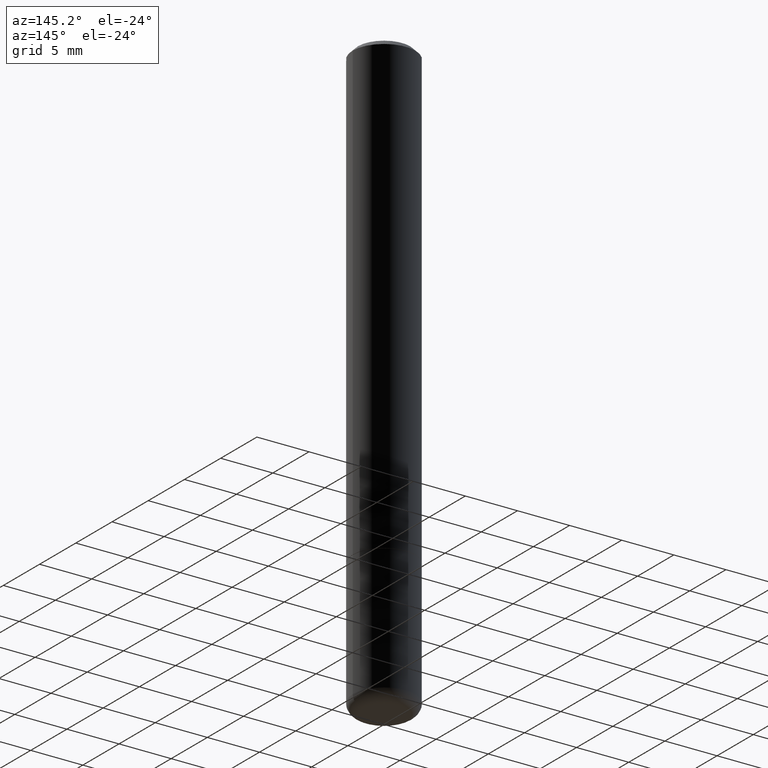
[diagram: clean part render]
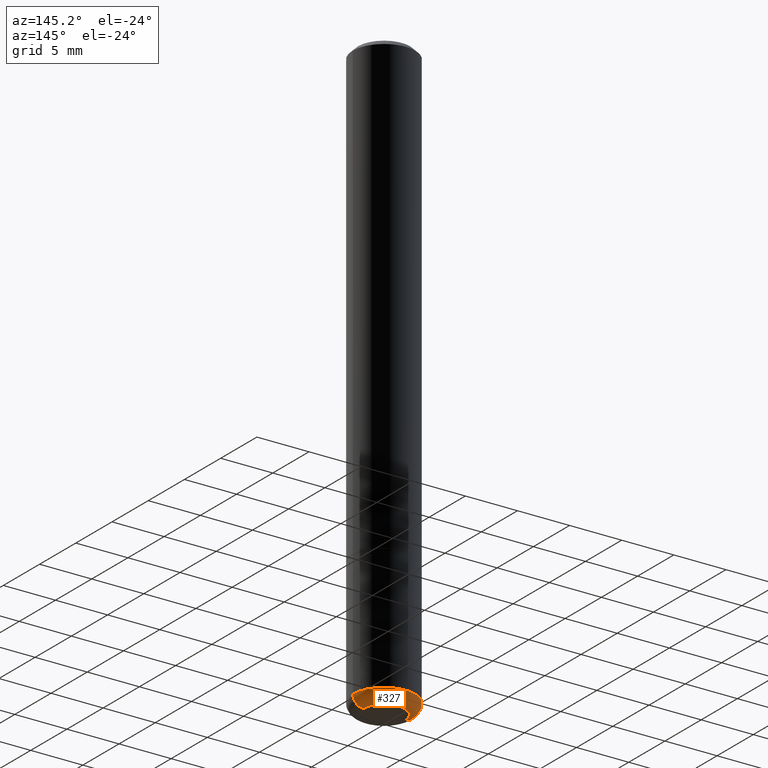
[diagram: same view with one face highlighted and labeled with its STEP entity id]
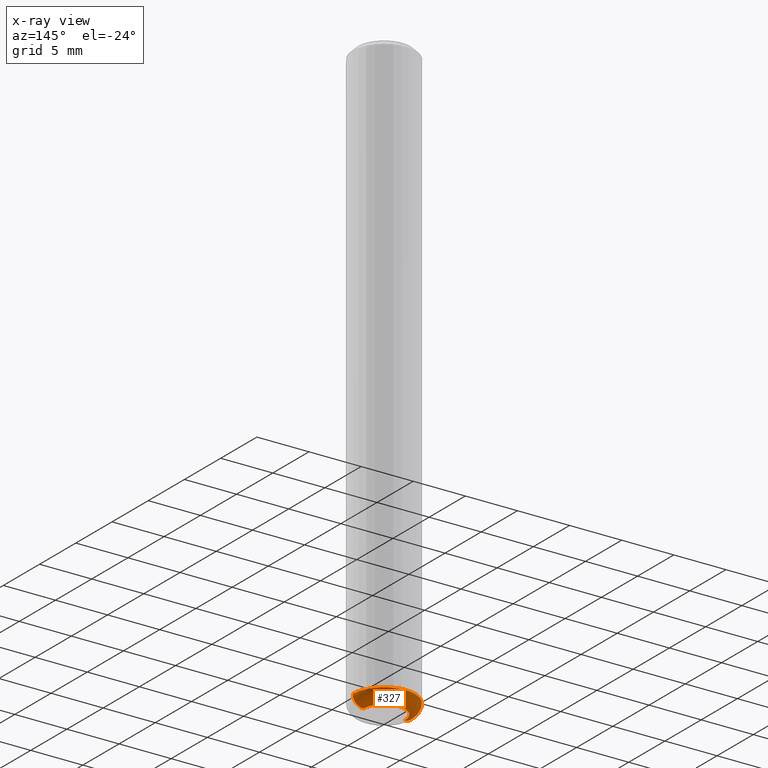
[diagram: x-ray of the same camera — body ghosted, the highlighted face saturated]
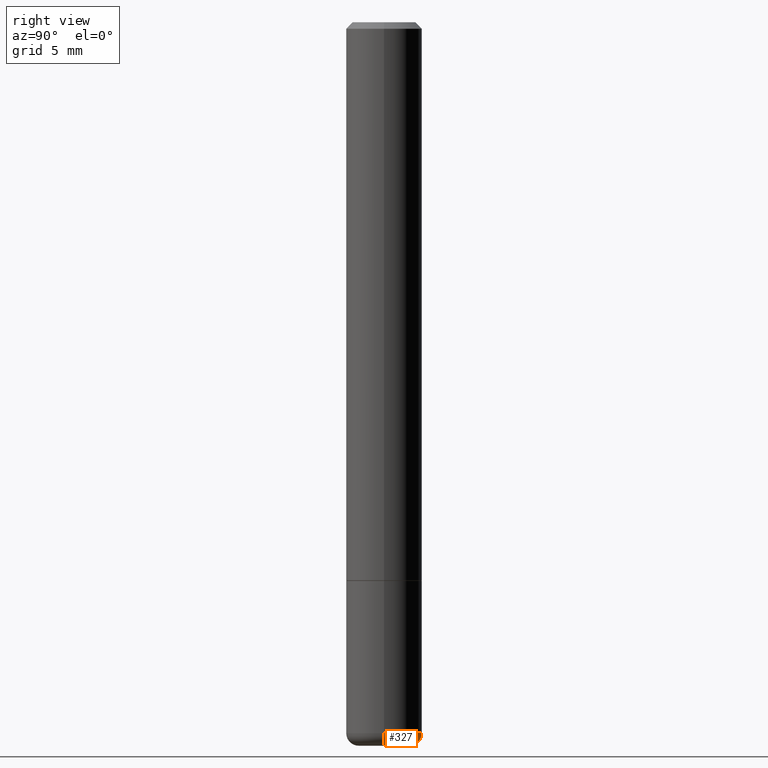
[diagram: same view with one face highlighted and labeled with its STEP entity id]
A machine part, auxiliary view. The second image highlights one B-rep face of the part: STEP entity #327.
The next image is the same camera in x-ray: the body ghosted, the highlighted face saturated — about 0% of this face is hidden behind the body in this view.
A second angle (right view) of the same face is appended — the face is thin or edge-on in the first view.
In plain terms, the highlighted toroidal blend (fillet) surface has major radius 1.999 mm and minor (blend) radius 1.0008 mm.
Its self-contained STEP definition (entity closure, byte-faithful):
#4 = DIRECTION ( 'NONE',  ( -1.000000000000000000, 7.105427357600989237E-15, 0.000000000000000000 ) ) ;
#33 = CARTESIAN_POINT ( 'NONE',  ( 5.487876547960064752E-29, -7.835233272497900762E-15, -2.244099999999999540 ) ) ;
#41 = VERTEX_POINT ( 'NONE', #347 ) ;
#57 = ORIENTED_EDGE ( 'NONE', *, *, #384, .F. ) ;
#60 = AXIS2_PLACEMENT_3D ( 'NONE', #134, #164, #106 ) ;
#63 = EDGE_CURVE ( 'NONE', #242, #407, #101, .T. ) ;
#69 = FACE_OUTER_BOUND ( 'NONE', #265, .T. ) ;
#70 = ORIENTED_EDGE ( 'NONE', *, *, #63, .F. ) ;
#101 = CIRCLE ( 'NONE', #172, 0.1180999999999999966 ) ;
#106 = DIRECTION ( 'NONE',  ( 1.000000000000000000, -6.982962677686266711E-15, 0.000000000000000000 ) ) ;
#107 = ORIENTED_EDGE ( 'NONE', *, *, #218, .T. ) ;
#111 = DIRECTION ( 'NONE',  ( 1.000000000000000000, -6.982962677686268288E-15, 4.883557194083112901E-29 ) ) ;
#121 = ORIENTED_EDGE ( 'NONE', *, *, #390, .T. ) ;
#123 = AXIS2_PLACEMENT_3D ( 'NONE', #235, #286, #4 ) ;
#134 = CARTESIAN_POINT ( 'NONE',  ( 0.07870000000000000606, -8.247228070481392959E-15, -2.204700000000000326 ) ) ;
#135 = CARTESIAN_POINT ( 'NONE',  ( -0.1180999999999998995, -6.858517936814806506E-15, -2.204700000000000326 ) ) ;
#158 = CARTESIAN_POINT ( 'NONE',  ( 5.391525076996371277E-29, -7.697668907747483125E-15, -2.204700000000000326 ) ) ;
#162 = DIRECTION ( 'NONE',  ( 1.000000000000000000, -6.982962677686269077E-15, 0.000000000000000000 ) ) ;
#164 = DIRECTION ( 'NONE',  ( -6.982962677686266711E-15, -1.000000000000000000, 3.491481338843145583E-15 ) ) ;
#166 = CIRCLE ( 'NONE', #60, 0.03939999999999978936 ) ;
#172 = AXIS2_PLACEMENT_3D ( 'NONE', #158, #281, #282 ) ;
#200 = AXIS2_PLACEMENT_3D ( 'NONE', #33, #319, #162 ) ;
#202 = DIRECTION ( 'NONE',  ( -2.445468806185136597E-29, 3.491481338843145583E-15, 1.000000000000000000 ) ) ;
#218 = EDGE_CURVE ( 'NONE', #394, #41, #382, .T. ) ;
#235 = CARTESIAN_POINT ( 'NONE',  ( -0.07870000000000000606, -7.138471774704284335E-15, -2.204700000000000326 ) ) ;
#236 = TOROIDAL_SURFACE ( 'NONE', #320, 0.07870000000000000606, 0.03939999999999978936 ) ;
#242 = VERTEX_POINT ( 'NONE', #284 ) ;
#265 = EDGE_LOOP ( 'NONE', ( #107, #121, #70, #57 ) ) ;
#281 = DIRECTION ( 'NONE',  ( -2.445468806185136597E-29, 3.491481338843145583E-15, 1.000000000000000000 ) ) ;
#282 = DIRECTION ( 'NONE',  ( 1.000000000000000000, -6.982962677686265133E-15, 0.000000000000000000 ) ) ;
#284 = CARTESIAN_POINT ( 'NONE',  ( 0.1180999999999998995, -8.522356799982231388E-15, -2.204700000000000326 ) ) ;
#286 = DIRECTION ( 'NONE',  ( 7.105427357601001859E-15, 1.000000000000000000, -3.491481338843145583E-15 ) ) ;
#291 = CARTESIAN_POINT ( 'NONE',  ( 5.391525076996371277E-29, -7.697668907747483125E-15, -2.204700000000000326 ) ) ;
#319 = DIRECTION ( 'NONE',  ( -2.445468806185136597E-29, 3.491481338843145583E-15, 1.000000000000000000 ) ) ;
#320 = AXIS2_PLACEMENT_3D ( 'NONE', #291, #202, #111 ) ;
#327 = ADVANCED_FACE ( 'NONE', ( #69 ), #236, .T. ) ;
#347 = CARTESIAN_POINT ( 'NONE',  ( -0.07870000000000000606, -7.067277038134755422E-15, -2.244099999999999540 ) ) ;
#361 = CARTESIAN_POINT ( 'NONE',  ( 0.07870000000000000606, -8.384792435231810596E-15, -2.244099999999999540 ) ) ;
#377 = CIRCLE ( 'NONE', #123, 0.03939999999999978936 ) ;
#382 = CIRCLE ( 'NONE', #200, 0.07870000000000000606 ) ;
#384 = EDGE_CURVE ( 'NONE', #394, #242, #166, .T. ) ;
#390 = EDGE_CURVE ( 'NONE', #41, #407, #377, .T. ) ;
#394 = VERTEX_POINT ( 'NONE', #361 ) ;
#407 = VERTEX_POINT ( 'NONE', #135 ) ;